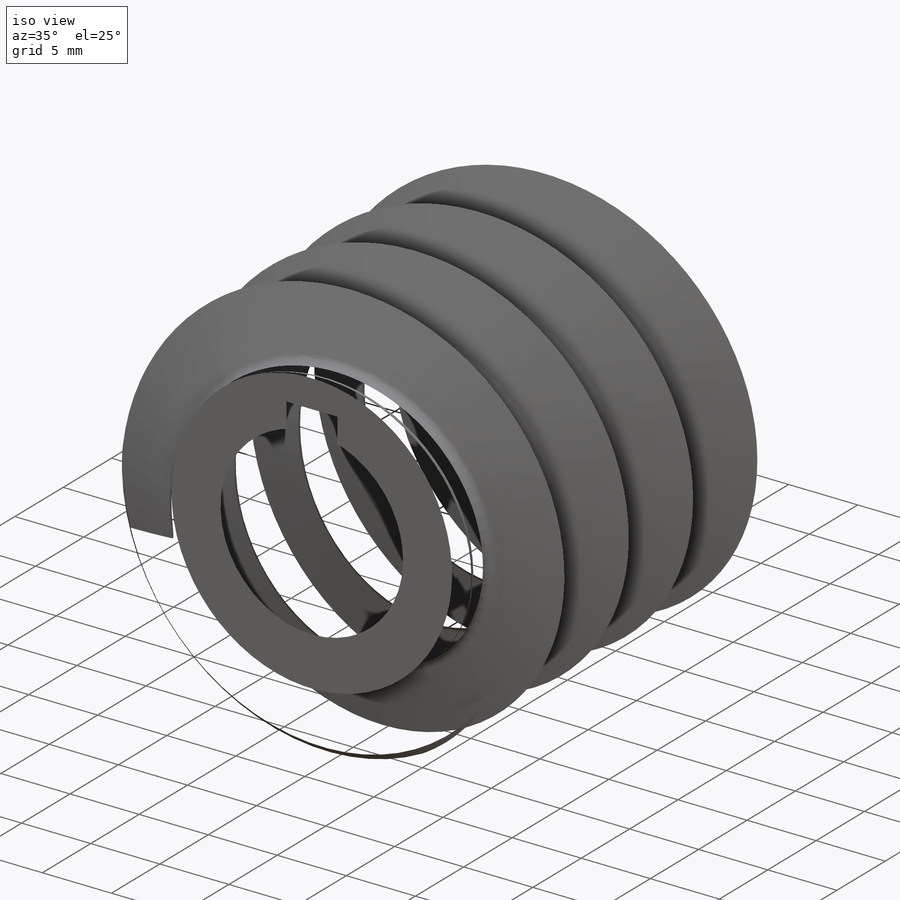
[diagram: iso view]
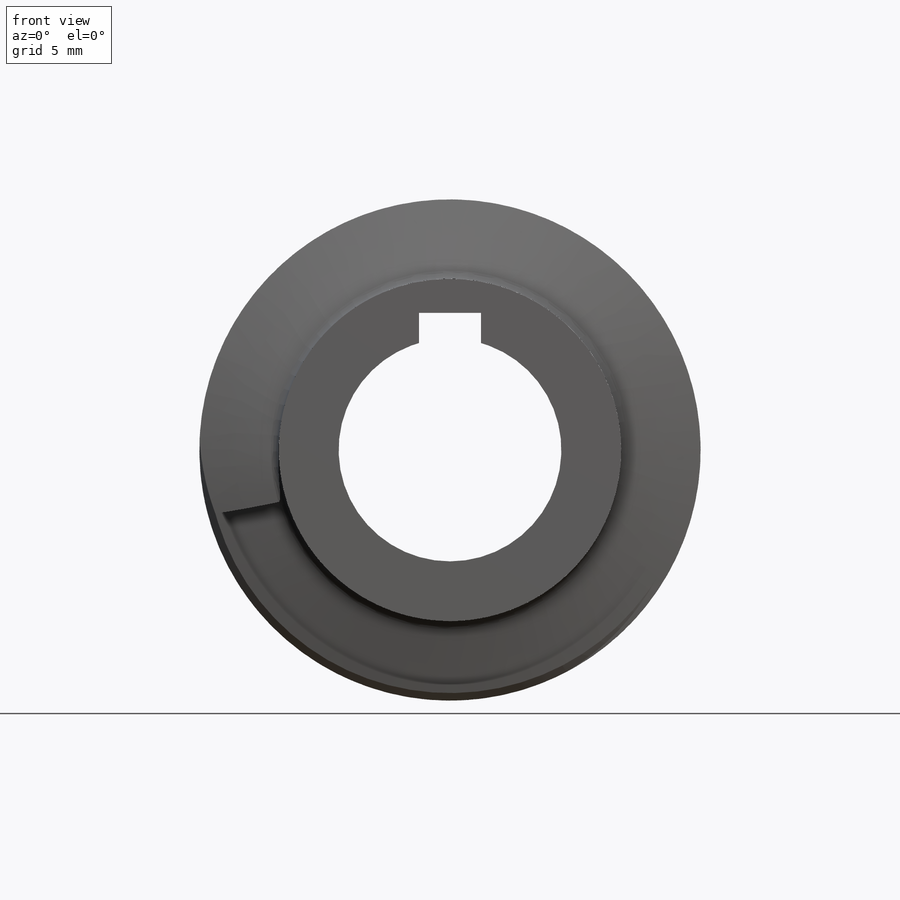
[diagram: front view]
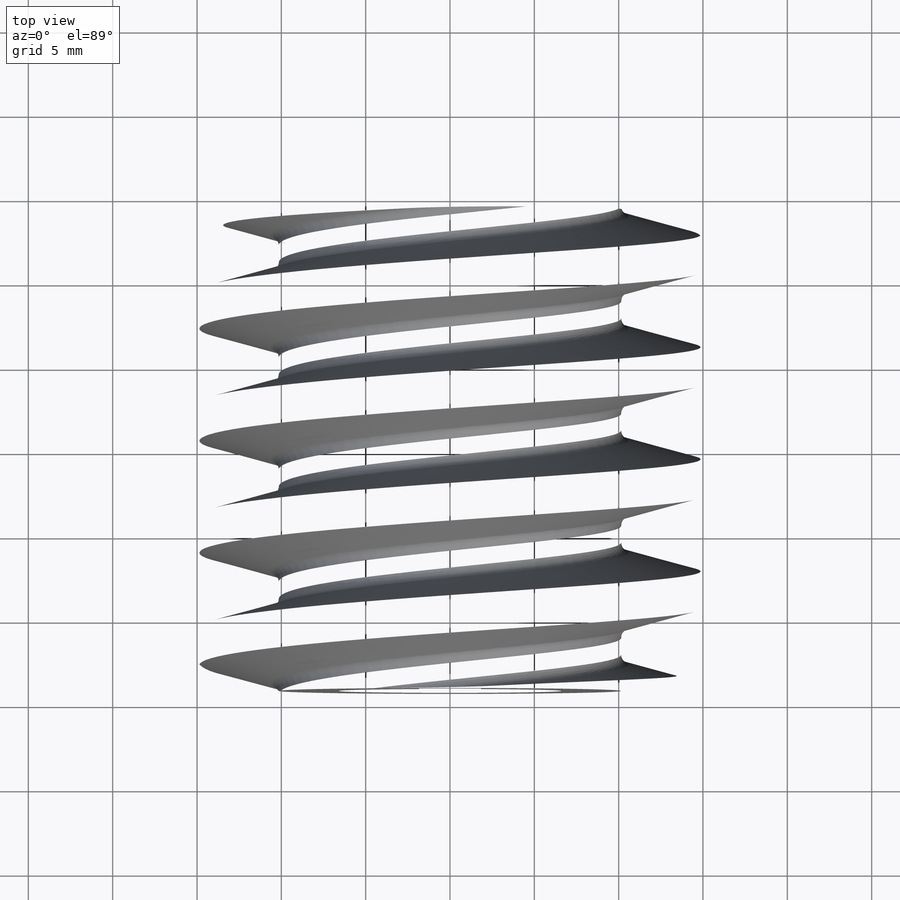
[diagram: top view]
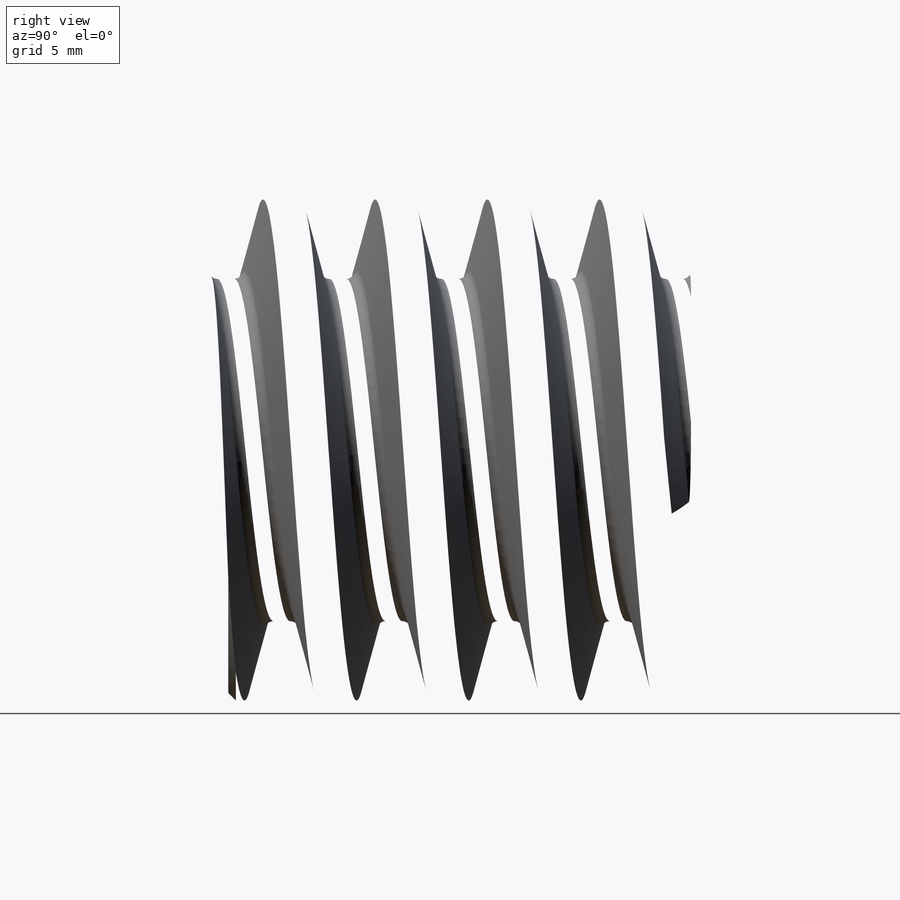
[diagram: right view]
SOLIDWORKS PART (.sldprt)
format: sldprt  version: not decoded by parser v0  size: 1,144,832 bytes
history: native  units: mm
features: sketch x7, helix x2, cut_extrude x2, material x1, revolve x1, sweep x1, cut_revolve x1, move_body x1, mirror x1, chamfer x1 + 1 further entry (+13 scaffold rows collapsed)
feature tree (32):
  scaffold x13  (default folders/planes/origin — collapsed)
  material  "Material <not specified>"
  "Design Table"
  sketch  "SketchRevolveWorm01"  dims[Side1=14.2875mm ChamferX=~1.58877mm ChamferY=~1.58877mm OutsideDiameter=14.859mm WormLength=28.575mm]
  revolve  "Worm01"  Angle=360deg
  helix  "HelixPlaneWorm01"  Pitch=19.949113mm
  sketch  "SketchHelixWorm01"  dims[PitchDiameter=~25.484667mm]
  helix  "GearHelixWorm01"  Pitch=39.898227mm
  sketch  "SketchToothWorm01"
  sweep  "ToothCutWorm01"
  sketch  "BoreRevolveSketch"  dims[BoreSide1=14.2875mm TaperSide1=6.35mm BoreSide2=14.2875mm TaperSide2=6.35mm]
  cut_revolve  "BoreRevolveCut"  Angle=360deg
  sketch  "KeywaySketch"  dims[KeyWidth1=1.5875mm KeyAngle=1.5875mm KeyInside=~4.957736mm KeyWidth2=1.5875mm KeyOutside=~7.338986mm D1=14.224mm]
  cut_extrude  "Keyway"  [1 undecoded]
  move_body  "Body-Move/Copy1"
  sketch  "AuxiliarySketchWorm01"  dims[PitchDiameter=~25.484667mm]
  sketch  "Sketch7"  dims[D1=29.718mm]
  cut_extrude  "Cut-Extrude2"  Depth=2.54mm
  mirror  "Mirror1"
  chamfer  "Chamfer1"  Distance=0.254mm Angle=45deg
decode coverage: 12 of 17 modeling features carry decoded parameters; 1 rows unclassified (native names shown)
note: ~ marks probable driven/reference dimensions
note: 1 parameter value undecoded
note: suppression state not decoded; provenance and decode notes live in map.json
